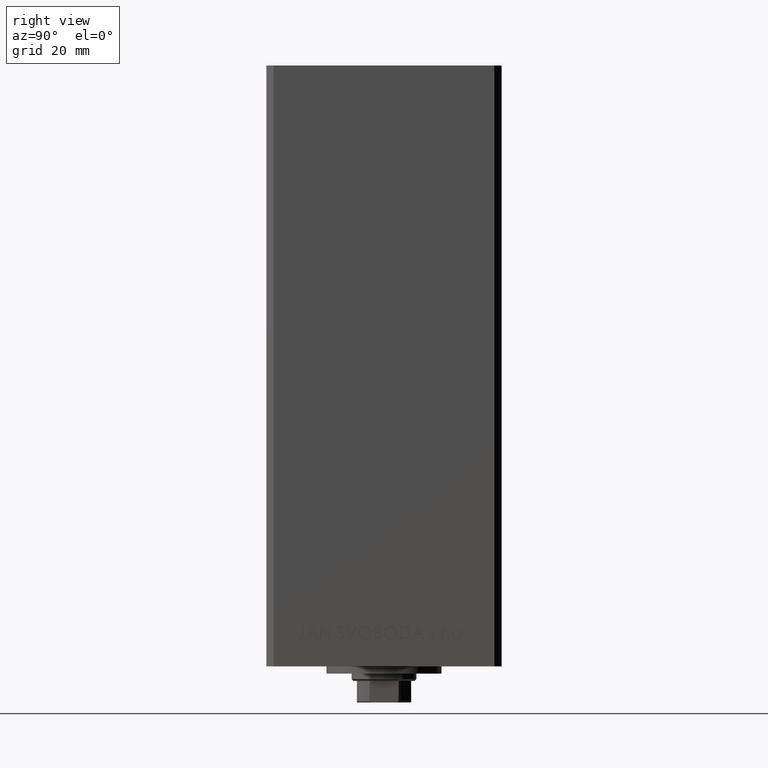
[diagram: clean part render]
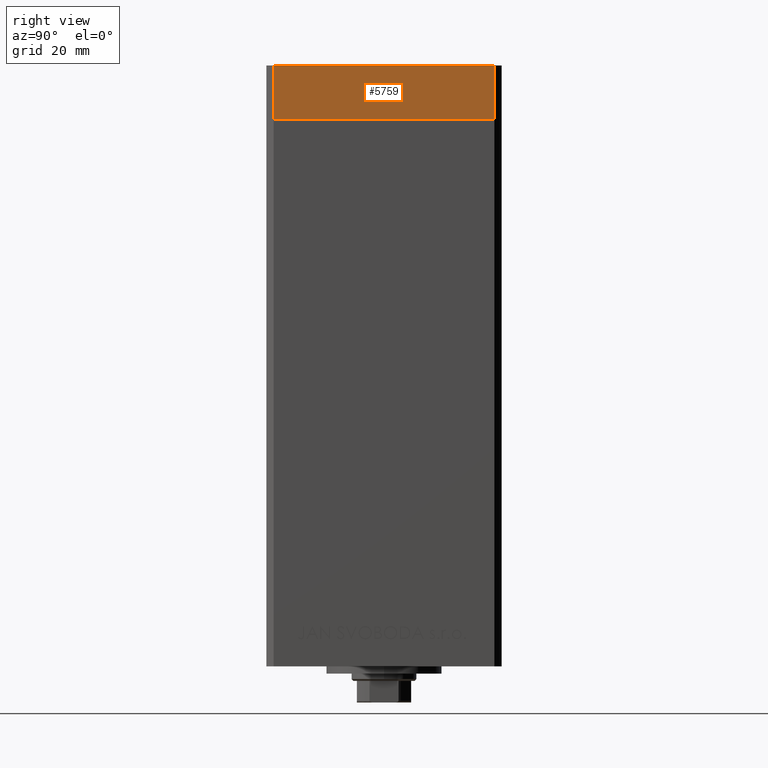
[diagram: same view with one face highlighted and labeled with its STEP entity id]
A machine part, right view. The second image highlights one B-rep face of the part: STEP entity #5759.
In plain terms, the highlighted planar face has unit normal (1, 0, 0).
Its self-contained STEP definition (entity closure, byte-faithful):
#1139 = ORIENTED_EDGE ( 'NONE', *, *, #48178, .F. ) ;
#1673 = VERTEX_POINT ( 'NONE', #39590 ) ;
#3431 = DIRECTION ( 'NONE',  ( 0.000000000000000000, 0.000000000000000000, 1.000000000000000000 ) ) ;
#4473 = ORIENTED_EDGE ( 'NONE', *, *, #4695, .T. ) ;
#4685 = CARTESIAN_POINT ( 'NONE',  ( 37.50000000000001421, -30.50000000000000711, 0.000000000000000000 ) ) ;
#4695 = EDGE_CURVE ( 'NONE', #1673, #17432, #17369, .T. ) ;
#5302 = DIRECTION ( 'NONE',  ( -1.478780668045803018E-15, 1.000000000000000000, 0.000000000000000000 ) ) ;
#5759 = ADVANCED_FACE ( 'NONE', ( #36415 ), #17325, .T. ) ;
#5911 = VERTEX_POINT ( 'NONE', #27958 ) ;
#7201 = CARTESIAN_POINT ( 'NONE',  ( 37.50000000000001421, -30.50000000000000711, -15.00000000000000000 ) ) ;
#10555 = VECTOR ( 'NONE', #37522, 1000.000000000000000 ) ;
#10661 = LINE ( 'NONE', #41296, #10555 ) ;
#11439 = EDGE_LOOP ( 'NONE', ( #20840, #1139, #4473, #12390 ) ) ;
#12390 = ORIENTED_EDGE ( 'NONE', *, *, #30048, .T. ) ;
#15645 = VECTOR ( 'NONE', #3431, 1000.000000000000000 ) ;
#17325 = PLANE ( 'NONE',  #28823 ) ;
#17369 = LINE ( 'NONE', #28692, #38414 ) ;
#17432 = VERTEX_POINT ( 'NONE', #38530 ) ;
#19347 = VERTEX_POINT ( 'NONE', #27292 ) ;
#20840 = ORIENTED_EDGE ( 'NONE', *, *, #39571, .F. ) ;
#27292 = CARTESIAN_POINT ( 'NONE',  ( 37.49999999999992184, 30.50000000000001066, 0.000000000000000000 ) ) ;
#27958 = CARTESIAN_POINT ( 'NONE',  ( 37.50000000000001421, -30.50000000000000711, 0.000000000000000000 ) ) ;
#28692 = CARTESIAN_POINT ( 'NONE',  ( 37.50000000000001421, -30.50000000000000711, -15.00000000000000000 ) ) ;
#28823 = AXIS2_PLACEMENT_3D ( 'NONE', #47986, #31672, #5302 ) ;
#30048 = EDGE_CURVE ( 'NONE', #17432, #19347, #10661, .T. ) ;
#31672 = DIRECTION ( 'NONE',  ( 1.000000000000000000, 1.478780668045803018E-15, -0.000000000000000000 ) ) ;
#32716 = DIRECTION ( 'NONE',  ( -1.478780668045802821E-15, 1.000000000000000000, 0.000000000000000000 ) ) ;
#36415 = FACE_OUTER_BOUND ( 'NONE', #11439, .T. ) ;
#36539 = VECTOR ( 'NONE', #46877, 1000.000000000000000 ) ;
#37522 = DIRECTION ( 'NONE',  ( 0.000000000000000000, 0.000000000000000000, 1.000000000000000000 ) ) ;
#38414 = VECTOR ( 'NONE', #32716, 1000.000000000000000 ) ;
#38530 = CARTESIAN_POINT ( 'NONE',  ( 37.49999999999992184, 30.50000000000001066, -15.00000000000000000 ) ) ;
#39571 = EDGE_CURVE ( 'NONE', #5911, #19347, #46367, .T. ) ;
#39590 = CARTESIAN_POINT ( 'NONE',  ( 37.50000000000001421, -30.50000000000000711, -15.00000000000000000 ) ) ;
#41296 = CARTESIAN_POINT ( 'NONE',  ( 37.49999999999992184, 30.50000000000001066, -15.00000000000000000 ) ) ;
#41603 = LINE ( 'NONE', #7201, #15645 ) ;
#46367 = LINE ( 'NONE', #4685, #36539 ) ;
#46877 = DIRECTION ( 'NONE',  ( -1.478780668045802821E-15, 1.000000000000000000, 0.000000000000000000 ) ) ;
#47986 = CARTESIAN_POINT ( 'NONE',  ( 37.50000000000001421, -30.50000000000000711, -15.00000000000000000 ) ) ;
#48178 = EDGE_CURVE ( 'NONE', #1673, #5911, #41603, .T. ) ;